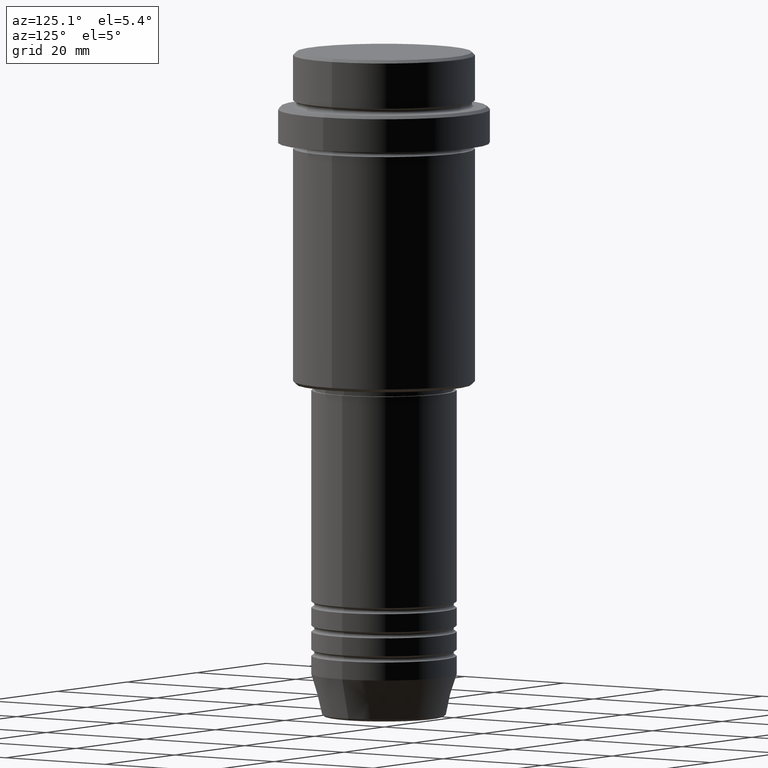
[diagram: clean part render]
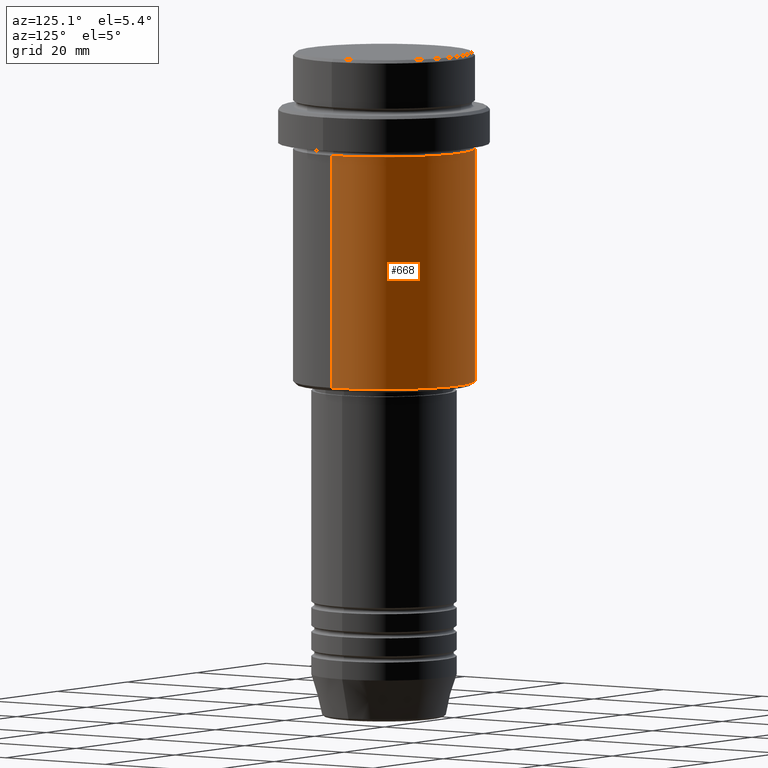
[diagram: same view with one face highlighted and labeled with its STEP entity id]
A machine part, auxiliary view. The second image highlights one B-rep face of the part: STEP entity #668.
In plain terms, the highlighted cylindrical surface (partial cylindrical patch) has radius 15 mm, axis along (-0, -0, 1).
Its self-contained STEP definition (entity closure, byte-faithful):
#13 = EDGE_CURVE ( 'NONE', #1300, #1189, #895, .T. ) ;
#14 = ORIENTED_EDGE ( 'NONE', *, *, #599, .T. ) ;
#139 = DIRECTION ( 'NONE',  ( -0.000000000000000000, -0.000000000000000000, 1.000000000000000000 ) ) ;
#191 = VECTOR ( 'NONE', #139, 1000.000000000000000 ) ;
#192 = DIRECTION ( 'NONE',  ( -0.000000000000000000, -0.000000000000000000, 1.000000000000000000 ) ) ;
#198 = CIRCLE ( 'NONE', #1268, 15.00000000000000000 ) ;
#222 = ORIENTED_EDGE ( 'NONE', *, *, #317, .T. ) ;
#267 = DIRECTION ( 'NONE',  ( 1.000000000000000000, 0.000000000000000000, 0.000000000000000000 ) ) ;
#273 = CARTESIAN_POINT ( 'NONE',  ( -15.00000000000000000, 1.836970198721029589E-15, -54.50000000000000711 ) ) ;
#284 = VERTEX_POINT ( 'NONE', #273 ) ;
#295 = AXIS2_PLACEMENT_3D ( 'NONE', #738, #192, #636 ) ;
#299 = AXIS2_PLACEMENT_3D ( 'NONE', #991, #672, #267 ) ;
#309 = CYLINDRICAL_SURFACE ( 'NONE', #295, 15.00000000000000000 ) ;
#317 = EDGE_CURVE ( 'NONE', #284, #676, #1371, .T. ) ;
#352 = CARTESIAN_POINT ( 'NONE',  ( 15.00000000000000178, 0.000000000000000000, -16.00000000000000000 ) ) ;
#452 = VECTOR ( 'NONE', #527, 1000.000000000000000 ) ;
#527 = DIRECTION ( 'NONE',  ( -0.000000000000000000, -0.000000000000000000, 1.000000000000000000 ) ) ;
#535 = DIRECTION ( 'NONE',  ( -0.000000000000000000, -0.000000000000000000, 1.000000000000000000 ) ) ;
#599 = EDGE_CURVE ( 'NONE', #1300, #284, #198, .T. ) ;
#636 = DIRECTION ( 'NONE',  ( 1.000000000000000000, 0.000000000000000000, 0.000000000000000000 ) ) ;
#668 = ADVANCED_FACE ( 'NONE', ( #1281 ), #309, .T. ) ;
#672 = DIRECTION ( 'NONE',  ( -0.000000000000000000, -0.000000000000000000, 1.000000000000000000 ) ) ;
#676 = VERTEX_POINT ( 'NONE', #1297 ) ;
#699 = CIRCLE ( 'NONE', #299, 15.00000000000000178 ) ;
#721 = CARTESIAN_POINT ( 'NONE',  ( -15.00000000000000000, 1.836970198721029589E-15, 0.000000000000000000 ) ) ;
#738 = CARTESIAN_POINT ( 'NONE',  ( 0.000000000000000000, 0.000000000000000000, 0.000000000000000000 ) ) ;
#818 = EDGE_LOOP ( 'NONE', ( #14, #222, #980, #1165 ) ) ;
#895 = LINE ( 'NONE', #1330, #191 ) ;
#980 = ORIENTED_EDGE ( 'NONE', *, *, #1140, .F. ) ;
#991 = CARTESIAN_POINT ( 'NONE',  ( 0.000000000000000000, 0.000000000000000000, -16.00000000000000000 ) ) ;
#1140 = EDGE_CURVE ( 'NONE', #1189, #676, #699, .T. ) ;
#1154 = CARTESIAN_POINT ( 'NONE',  ( 0.000000000000000000, 0.000000000000000000, -54.50000000000000711 ) ) ;
#1165 = ORIENTED_EDGE ( 'NONE', *, *, #13, .F. ) ;
#1189 = VERTEX_POINT ( 'NONE', #352 ) ;
#1268 = AXIS2_PLACEMENT_3D ( 'NONE', #1154, #535, #1288 ) ;
#1281 = FACE_OUTER_BOUND ( 'NONE', #818, .T. ) ;
#1288 = DIRECTION ( 'NONE',  ( -1.000000000000000000, 0.000000000000000000, 0.000000000000000000 ) ) ;
#1289 = CARTESIAN_POINT ( 'NONE',  ( 15.00000000000000000, 0.000000000000000000, -54.50000000000000711 ) ) ;
#1297 = CARTESIAN_POINT ( 'NONE',  ( -15.00000000000000355, 1.836970198721029983E-15, -16.00000000000000000 ) ) ;
#1300 = VERTEX_POINT ( 'NONE', #1289 ) ;
#1330 = CARTESIAN_POINT ( 'NONE',  ( 15.00000000000000000, 0.000000000000000000, 0.000000000000000000 ) ) ;
#1371 = LINE ( 'NONE', #721, #452 ) ;